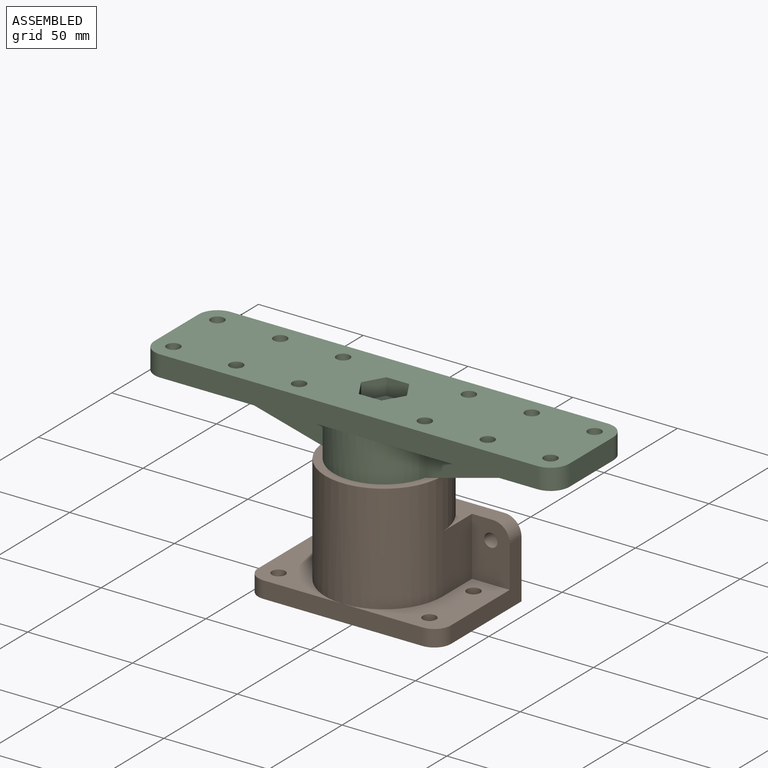
[diagram: assembled view]
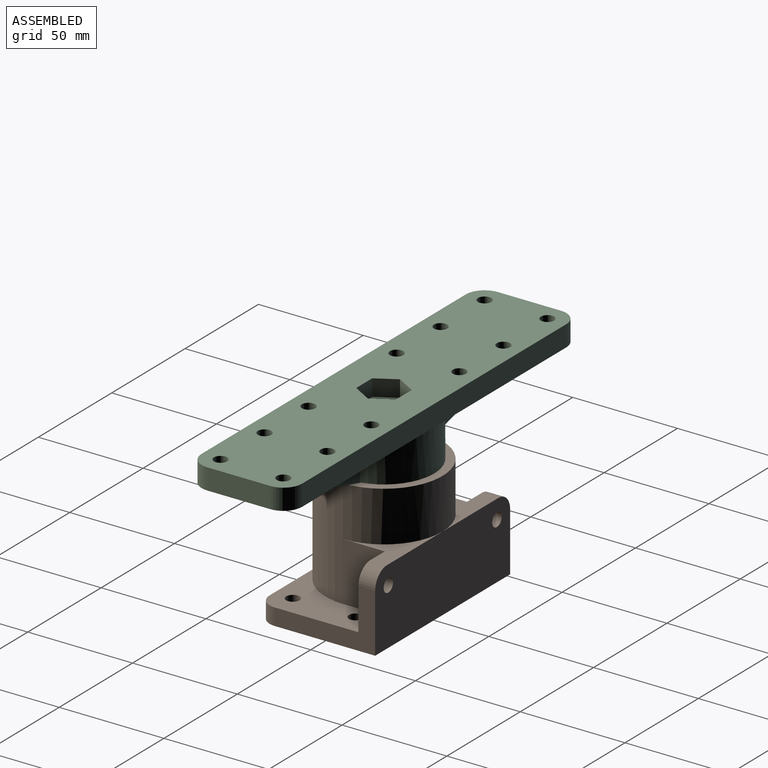
[diagram: assembled view, second angle]
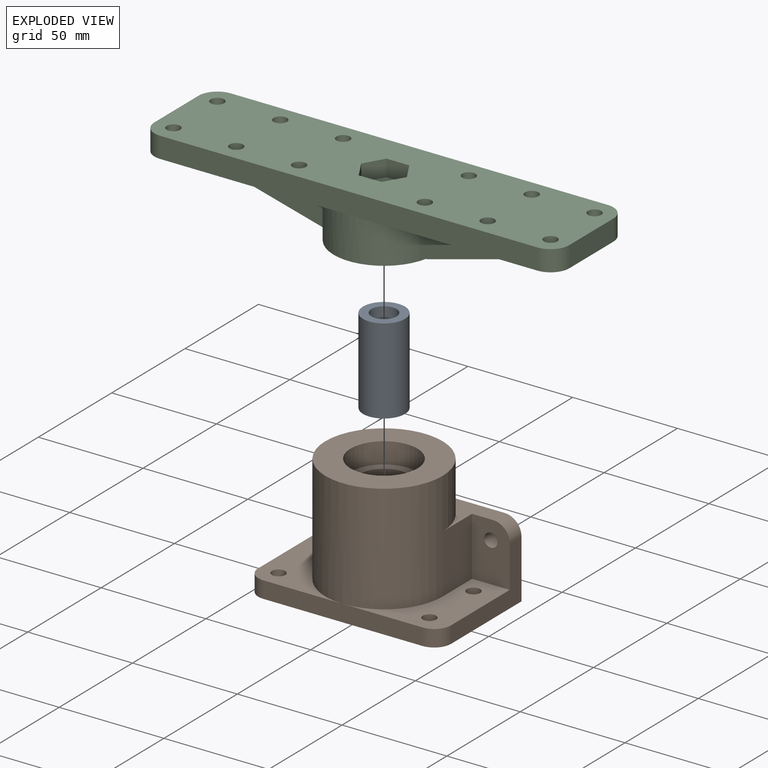
[diagram: exploded view]
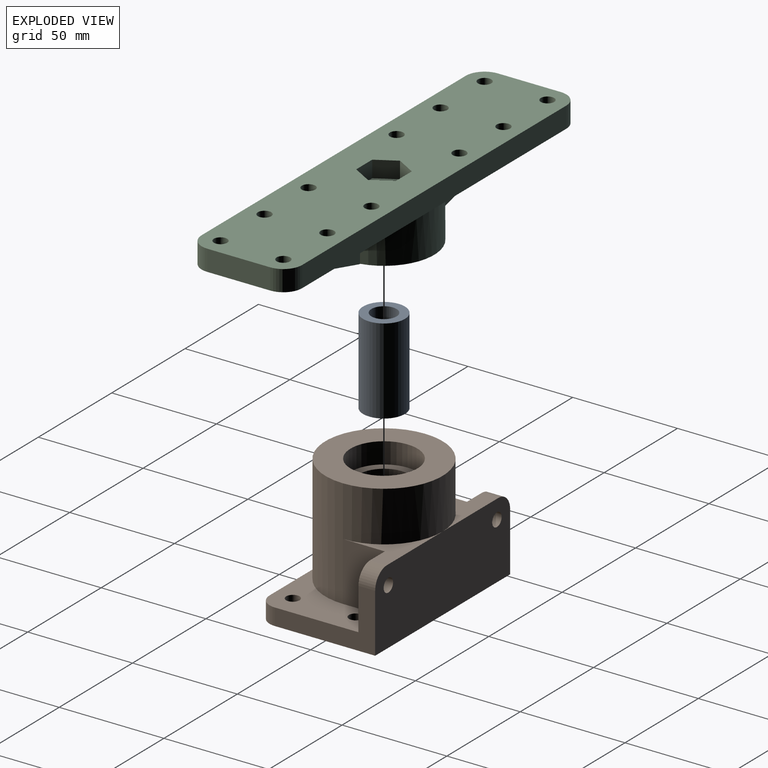
[diagram: exploded view, second angle]
ASSEMBLY  parts=3 mates=2
PART A: 4 faces, bbox 20x20x41 mm
  f0: cylinder r=6mm len=41mm, axis (0,0,-1), area 1545.7mm2, adj f2,f3
  f1: cylinder r=10mm len=41mm, axis (0,0,-1), area 2576.1mm2, adj f2,f3
  f2: plane 20x20mm, normal (0,0,1), area 201.1mm2, adj f0,f1
  f3: plane 20x20mm, normal (0,0,-1), area 201.1mm2, adj f0,f1
PART B: 30 faces, bbox 92x56x60 mm
  f0: plane 56x56mm, normal (0,0,1), area 1658.8mm2, adj f4,f9
  f1: plane 28x18mm, normal (0,-1,0), area 458.1mm2, adj f10,f11,f16,f23,f25,f27
  f2: plane 92x36mm, normal (0,1,0), area 3220.2mm2, adj f3,f11,f13,f22,f23,f24,f25,f26
  f3: plane 92x56mm, normal (0,0,-1), area 4191.6mm2, adj f2,f5,f11,f13,f17,f18,f19,f20
  f4: cylinder r=16mm len=32mm, axis (0,0,1), area 1005.3mm2, adj f0,f8
  f5: cylinder r=16mm len=32mm, axis (0,0,1), area 1005.3mm2, adj f3,f6
  f6: plane 32x32mm, normal (0,0,-1), area 351.9mm2, adj f5,f7
  f7: cylinder r=12mm len=40mm, axis (0,0,1), area 3015.9mm2, adj f6,f8
  f8: plane 32x32mm, normal (0,0,1), area 351.9mm2, adj f4,f7
  f9: cylinder r=28mm len=56mm, axis (0,0,1), area 6685.3mm2, adj f0,f10,f12,f15,f16,f24,f25
  f10: plane 28x20mm, normal (-1,0,0), area 560mm2, adj f1,f9,f16,f25
  f11: plane 48x28mm, normal (-1,0,0), area 544mm2, adj f1,f2,f3,f16,f27,f29
  f12: plane 28x20mm, normal (1,0,0), area 560mm2, adj f9,f14,f15,f24
  f13: plane 48x28mm, normal (1,0,0), area 544mm2, adj f2,f3,f14,f15,f26,f28
  f14: plane 28x18mm, normal (0,-1,0), area 458.1mm2, adj f12,f13,f15,f22,f24,f26
  f15: plane 48x46mm, normal (0,0,1), area 954.2mm2, adj f9,f12,f13,f14,f17,f20,f21,f28
  f16: plane 48x46mm, normal (0,0,1), area 954.2mm2, adj f1,f9,f10,f11,f17,f18,f19,f29
  f17: plane 76x8mm, normal (0,-1,0), area 608mm2, adj f3,f15,f16,f28,f29
  f18: cylinder r=3.2mm len=8mm, axis (0,0,1), area 160.8mm2, adj f3,f16
  f19: cylinder r=3.2mm len=8mm, axis (0,0,1), area 160.8mm2, adj f3,f16
  f20: cylinder r=3.2mm len=8mm, axis (0,0,1), area 160.8mm2, adj f3,f15
  f21: cylinder r=3.2mm len=8mm, axis (0,0,1), area 160.8mm2, adj f3,f15
  f22: cylinder r=3.2mm len=8mm, axis (0,-1,0), area 160.8mm2, adj f2,f14
  f23: cylinder r=3.2mm len=8mm, axis (0,-1,0), area 160.8mm2, adj f1,f2
  f24: plane 38x28mm, normal (0,0,1), area 248.2mm2, adj f2,f9,f12,f14,f26
  f25: plane 38x28mm, normal (0,0,1), area 248.2mm2, adj f1,f2,f9,f10,f27
  f26: cylinder r=8mm len=8mm, axis (0,1,0), area 100.5mm2, adj f2,f13,f14,f24
  f27: cylinder r=8mm len=8mm, axis (0,1,0), area 100.5mm2, adj f1,f2,f11,f25
  f28: cylinder r=8mm len=8mm, axis (0,0,1), area 100.5mm2, adj f3,f13,f15,f17
  f29: cylinder r=8mm len=8mm, axis (0,0,1), area 100.5mm2, adj f3,f11,f16,f17
PART C: 42 faces, bbox 198x48x30 mm
  f0: cylinder r=24mm len=46.95mm, axis (0,0,-1), area 1306.5mm2, adj f2,f26,f34,f38,f41
  f1: plane 99x19mm, normal (0,0,-1), area 1433.8mm2, adj f10,f12,f14,f20,f23,f32,f33,f40
  f2: plane 99x19mm, normal (0,0,-1), area 1433.8mm2, adj f0,f3,f5,f7,f21,f22,f30,f38
  f3: cylinder r=3.2mm len=10mm, axis (0,0,-1), area 201.1mm2, adj f2,f25
  f4: cylinder r=3.2mm len=10mm, axis (0,0,-1), area 201.1mm2, adj f25,f35
  f5: cylinder r=3.2mm len=10mm, axis (0,0,-1), area 201.1mm2, adj f2,f25
  f6: cylinder r=3.2mm len=10mm, axis (0,0,-1), area 201.1mm2, adj f25,f35
  f7: cylinder r=3.2mm len=10mm, axis (0,0,-1), area 201.1mm2, adj f2,f25
  f8: cylinder r=3.2mm len=10mm, axis (0,0,-1), area 201.1mm2, adj f25,f35
  f9: cylinder r=3.2mm len=10mm, axis (0,0,-1), area 201.1mm2, adj f25,f34
  f10: cylinder r=3.2mm len=10mm, axis (0,0,-1), area 201.1mm2, adj f1,f25
  f11: cylinder r=3.2mm len=10mm, axis (0,0,-1), area 201.1mm2, adj f25,f34
  f12: cylinder r=3.2mm len=10mm, axis (0,0,-1), area 201.1mm2, adj f1,f25
  f13: cylinder r=3.2mm len=10mm, axis (0,0,-1), area 201.1mm2, adj f25,f34
  f14: cylinder r=3.2mm len=10mm, axis (0,0,-1), area 201.1mm2, adj f1,f25
  f15: plane 9.44x8mm, normal (-0.87,-0.5,0), area 87.2mm2, adj f16,f24,f25,f28
  f16: plane 9.44x8mm, normal (-0.87,0.5,0), area 87.2mm2, adj f15,f17,f25,f28
  f17: plane 10.9x8mm, normal (0,1,0), area 87.2mm2, adj f16,f18,f25,f28
  f18: plane 9.44x8mm, normal (0.87,0.5,0), area 87.2mm2, adj f17,f19,f25,f28
  f19: plane 9.44x8mm, normal (0.87,-0.5,0), area 87.2mm2, adj f18,f24,f25,f28
  f20: plane 30x10mm, normal (1,0,0), area 300mm2, adj f1,f25,f29,f32,f34,f39
  f21: plane 180x10mm, normal (0,1,0), area 1800mm2, adj f2,f25,f29,f30,f34
  f22: plane 30x10mm, normal (-1,0,0), area 300mm2, adj f2,f25,f30,f31,f35,f36
  f23: plane 180x10mm, normal (0,-1,0), area 1800mm2, adj f1,f25,f31,f32,f35
  f24: plane 10.9x8mm, normal (0,-1,0), area 87.2mm2, adj f15,f19,f25,f28
  f25: plane 198x48mm, normal (0,0,1), area 8739.8mm2, adj f3,f4,f5,f6,f7,f8,f9,f10
  f26: plane 48x48mm, normal (0,0,-1), area 1700mm2, adj f0,f27,f33,f36,f37,f38,f39,f40
  f27: cylinder r=6mm len=22mm, axis (0,0,-1), area 829.4mm2, adj f26,f28
  f28: plane 21.8x18.88mm, normal (0,0,1), area 195.6mm2, adj f15,f16,f17,f18,f19,f24,f27
  f29: cylinder r=9mm len=10mm, axis (0,0,1), area 141.4mm2, adj f20,f21,f25,f34
  f30: cylinder r=9mm len=10mm, axis (0,0,-1), area 141.4mm2, adj f2,f21,f22,f25
  f31: cylinder r=9mm len=10mm, axis (0,0,1), area 141.4mm2, adj f22,f23,f25,f35
  f32: cylinder r=9mm len=10mm, axis (0,0,-1), area 141.4mm2, adj f1,f20,f23,f25
  f33: cylinder r=24mm len=46.95mm, axis (0,0,-1), area 1306.5mm2, adj f1,f26,f35,f37,f40
  f34: plane 99x19mm, normal (0,0,-1), area 1433.8mm2, adj f0,f9,f11,f13,f20,f21,f29,f41
  f35: plane 99x19mm, normal (0,0,-1), area 1433.8mm2, adj f4,f6,f8,f22,f23,f31,f33,f37
  f36: plane 75x20mm, normal (-0.26,0,-0.97), area 776.2mm2, adj f22,f26,f37,f38
  f37: plane 75.53x20mm, normal (0,-1,0), area 760.5mm2, adj f26,f33,f35,f36
  f38: plane 75.53x20mm, normal (0,1,0), area 760.5mm2, adj f0,f2,f26,f36
  f39: plane 75x20mm, normal (0.26,0,-0.97), area 776.2mm2, adj f20,f26,f40,f41
  f40: plane 75.53x20mm, normal (0,-1,0), area 760.5mm2, adj f1,f26,f33,f39
  f41: plane 75.53x20mm, normal (0,1,0), area 760.5mm2, adj f0,f26,f34,f39
PLACE A t=(0,0,10)mm
PLACE B at identity fixed
PLACE C t=(0,0,60)mm
MATE fastened A.f0 <-> B.f4  axis (0,0,-1) through (0,0,10)mm
MATE revolute C.f27 <-> B.f4  axis (0,0,-1) through (0,0,60)mm
